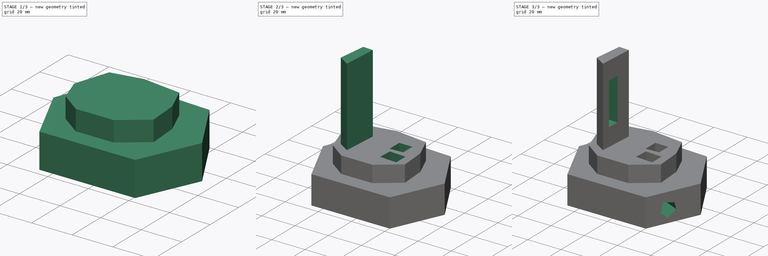
[diagram: build sequence overview — one tinted view per stage of 3, left to right]
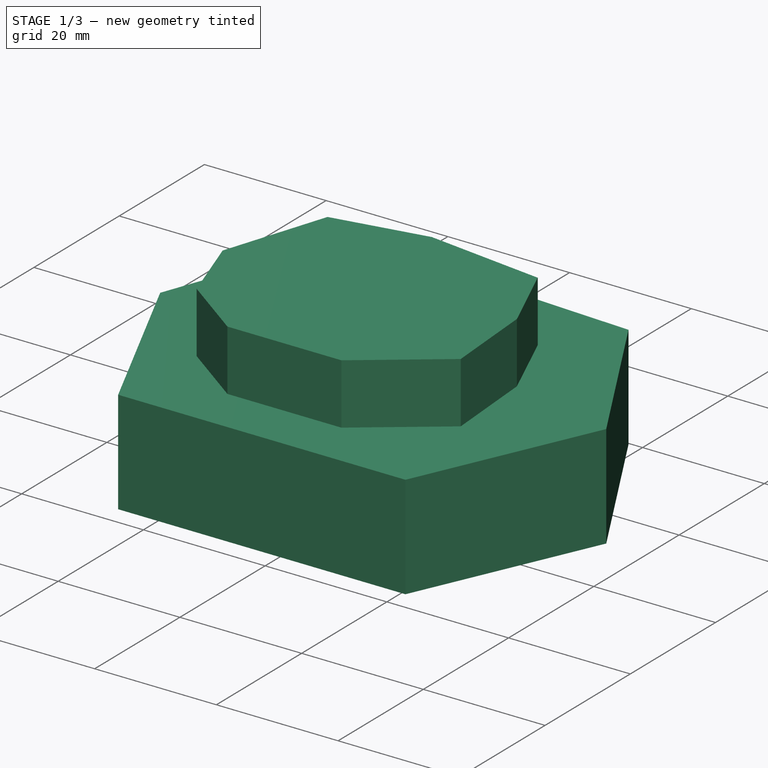
[diagram: stage 1 of 3 — iso view after this stage's code; geometry added in this stage tinted green]
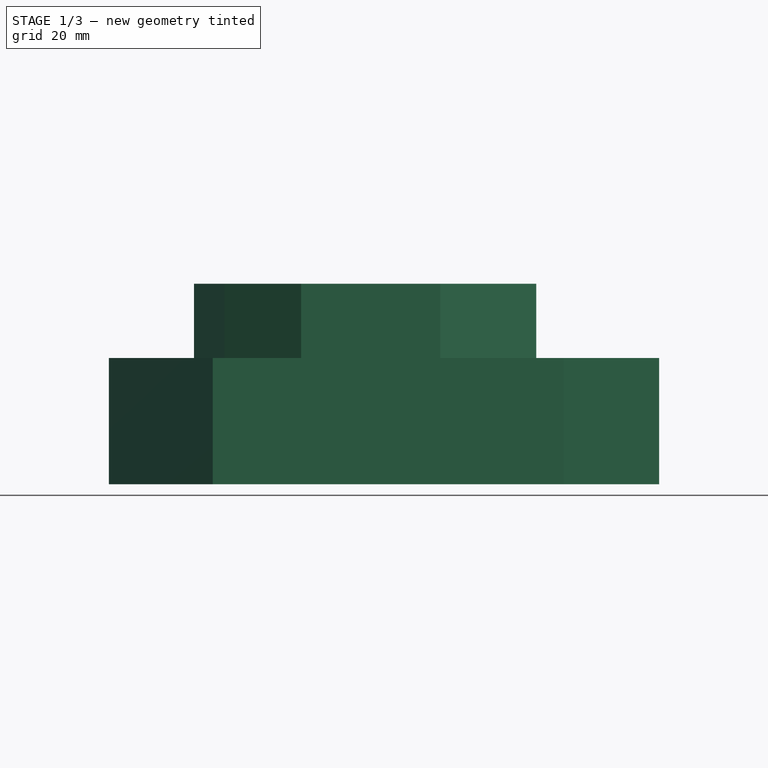
[diagram: stage 1 of 3 — front view after this stage's code; geometry added in this stage tinted green]
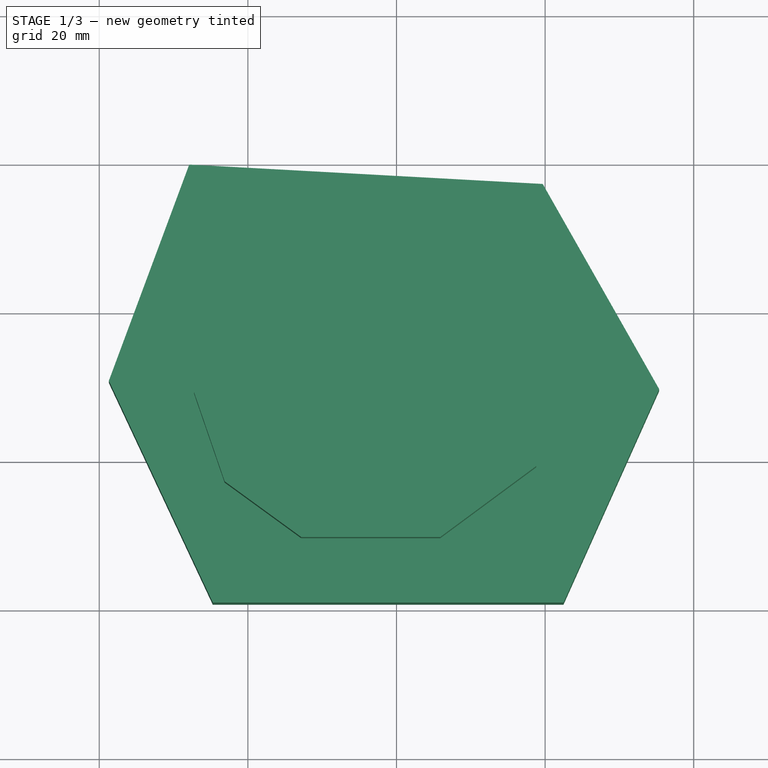
[diagram: stage 1 of 3 — top view after this stage's code; geometry added in this stage tinted green]
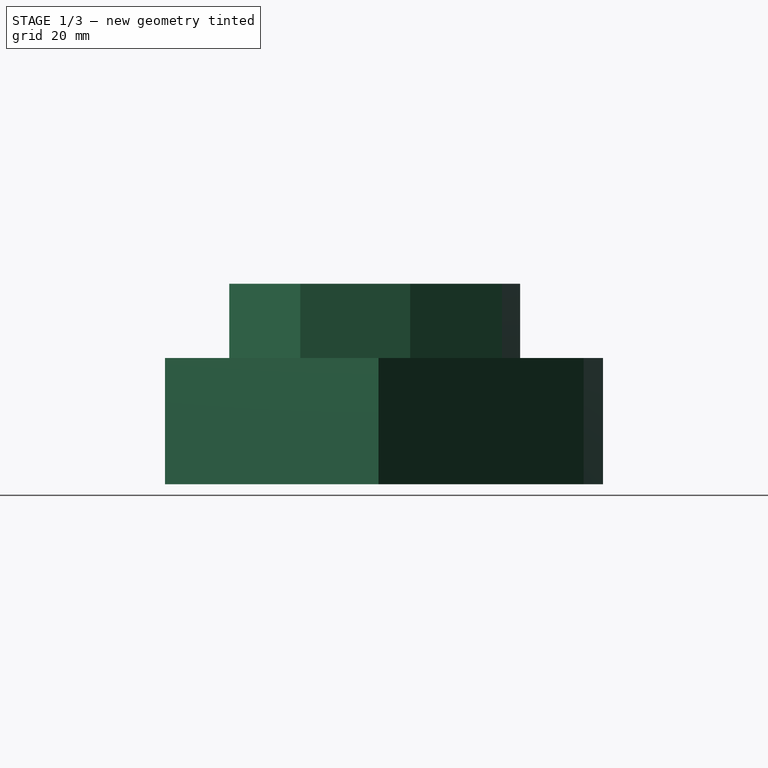
[diagram: stage 1 of 3 — right view after this stage's code; geometry added in this stage tinted green]
FCSTD DOCUMENT  (FreeCAD 1.0R39319 (Git))
Label: ojt1_t17p01_extrusions_holes
License: All rights reserved
LicenseURL: https://en.wikipedia.org/wiki/All_rights_reserved
objects: Sketcher::SketchObject×8, PartDesign::Pocket×4, PartDesign::Pad×3, PartDesign::Body×1
note: 38 computed .brp shape members not serialized (recipe doc carries the construction recipe); baked Part::Feature solids carry a one-line shape summary decoded from their .brp

FEATURE [Sketcher::SketchObject] Sketch
  ArcFitTolerance = 1e-06
  AttachmentSupport = -> [XY_Plane]
  FullyConstrained = false
  MakeInternals = false
  MapMode = 5
  sketch-geometry (6):
    g0: LineSegment StartX=-27.8919 StartY=19.7763 StartZ=0 EndX=19.6828 EndY=17.1643 EndZ=0
    g1: LineSegment StartX=19.6828 StartY=17.1643 StartZ=0 EndX=35.3544 EndY=-10.4476 EndZ=0
    g2: LineSegment StartX=35.3544 StartY=-10.4476 StartZ=0 EndX=22.4813 EndY=-39.1789 EndZ=0
    g3: LineSegment StartX=22.4813 StartY=-39.1789 StartZ=0 EndX=-24.7202 EndY=-39.1789 EndZ=0
    g4: LineSegment StartX=-24.7202 StartY=-39.1789 StartZ=0 EndX=-38.7128 EndY=-9.3282 EndZ=0
    g5: LineSegment StartX=-38.7128 StartY=-9.3282 StartZ=0 EndX=-27.8919 EndY=19.7763 EndZ=0
  constraints (7):
    c: Coincident(g0,g1)
    c: Coincident(g1,g2)
    c: Coincident(g2,g3)
    c: Horizontal(g3)
    c: Coincident(g3,g4)
    c: Coincident(g4,g5)
    c: Coincident(g5,g0)
FEATURE [PartDesign::Pad] Pad
  Direction = (0,0,1)
  Length = 17
  Length2 = 10
  Profile = -> Sketch
  ReferenceAxis = -> Sketch [N_Axis]
  Refine = true
  Suppressed = false
  Type = 0
FEATURE [Sketcher::SketchObject] Sketch001
  ArcFitTolerance = 1e-06
  AttachmentSupport = -> [Pad]
  FullyConstrained = true
  MakeInternals = false
  MapMode = 5
  Placement = pos=(0,0,17) rot=(0,0,1;0rad)
  sketch-geometry (4):
    g0: LineSegment StartX=-18.1903 StartY=10.4478 StartZ=0 EndX=-25.4665 EndY=-5.59695 EndZ=0
    g1: LineSegment StartX=-18.1903 StartY=10.4478 StartZ=0 EndX=-25.4665 EndY=-5.59695 EndZ=0
    g2: LineSegment StartX=-25.4665 StartY=-5.59695 StartZ=0 EndX=-25.4665 EndY=-20.7089 EndZ=0
    g3: LineSegment StartX=-25.4665 StartY=-20.7089 StartZ=0 EndX=-18.5635 EndY=-33.2089 EndZ=0
  constraints (4):
    c: Coincident(g1,g1)
    c: Coincident(g1,g2)
    c: Vertical(g2)
    c: Coincident(g2,g3)
FEATURE [Sketcher::SketchObject] Sketch002
  ArcFitTolerance = 1e-06
  AttachmentSupport = -> [Pad]
  FullyConstrained = false
  MakeInternals = false
  MapMode = 5
  Placement = pos=(0,0,17) rot=(0,0,1;0rad)
  sketch-geometry (9):
    g0: LineSegment StartX=-27.2472 StartY=-11.0487 StartZ=0 EndX=-21.8165 EndY=5.80527 EndZ=0
    g1: LineSegment StartX=-21.8165 StartY=5.80527 StartZ=0 EndX=-6.64797 EndY=8.61426 EndZ=0
    g2: LineSegment StartX=-6.64797 StartY=8.61426 StartZ=0 EndX=12.4532 EndY=6.1798 EndZ=0
    g3: LineSegment StartX=12.4532 StartY=6.1798 StartZ=0 EndX=17.6966 EndY=-6.17975 EndZ=0
    g4: LineSegment StartX=17.6966 StartY=-6.17975 StartZ=0 EndX=18.8202 EndY=-20.9738 EndZ=0
    g5: LineSegment StartX=18.8202 StartY=-20.9738 StartZ=0 EndX=5.89884 EndY=-30.5243 EndZ=0
    g6: LineSegment StartX=5.89884 StartY=-30.5243 StartZ=0 EndX=-12.8277 EndY=-30.5243 EndZ=0
    g7: LineSegment StartX=-12.8277 StartY=-30.5243 StartZ=0 EndX=-23.1274 EndY=-23.0337 EndZ=0
    g8: LineSegment StartX=-23.1274 StartY=-23.0337 StartZ=0 EndX=-27.2472 EndY=-11.0487 EndZ=0
  constraints (10):
    c: Coincident(g0,g1)
    c: Coincident(g1,g2)
    c: Coincident(g2,g3)
    c: Coincident(g3,g4)
    c: Coincident(g4,g5)
    c: Coincident(g5,g6)
    c: Horizontal(g6)
    c: Coincident(g6,g7)
    c: Coincident(g7,g8)
    c: Coincident(g8,g0)
FEATURE [PartDesign::Pad] Pad001
  BaseFeature = -> Pad
  Direction = (0,0,1)
  Length = 10
  Length2 = 10
  Profile = -> Sketch002
  ReferenceAxis = -> Sketch002 [N_Axis]
  Refine = true
  Suppressed = false
  Type = 0
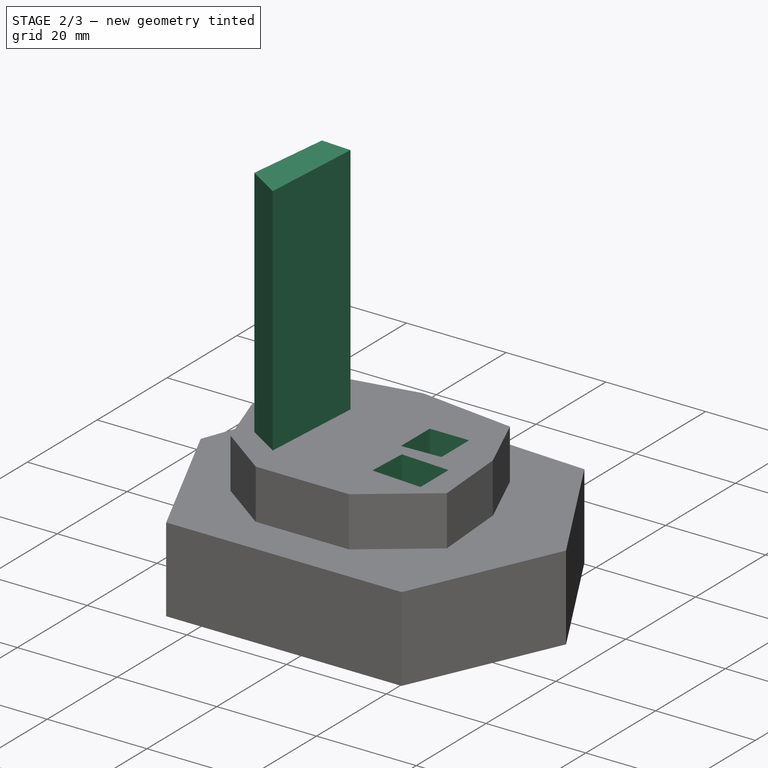
[diagram: stage 2 of 3 — iso view after this stage's code; geometry added in this stage tinted green]
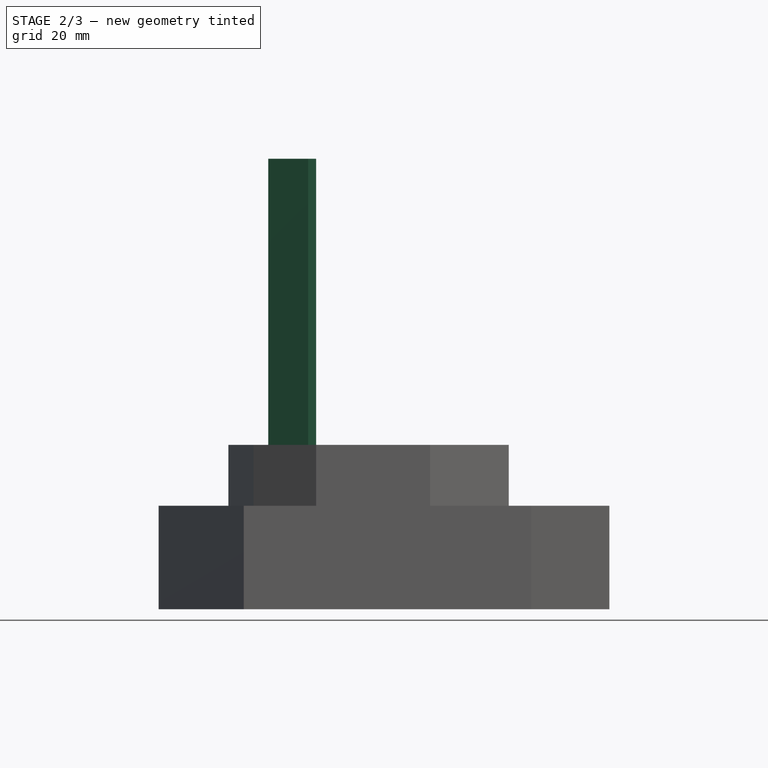
[diagram: stage 2 of 3 — front view after this stage's code; geometry added in this stage tinted green]
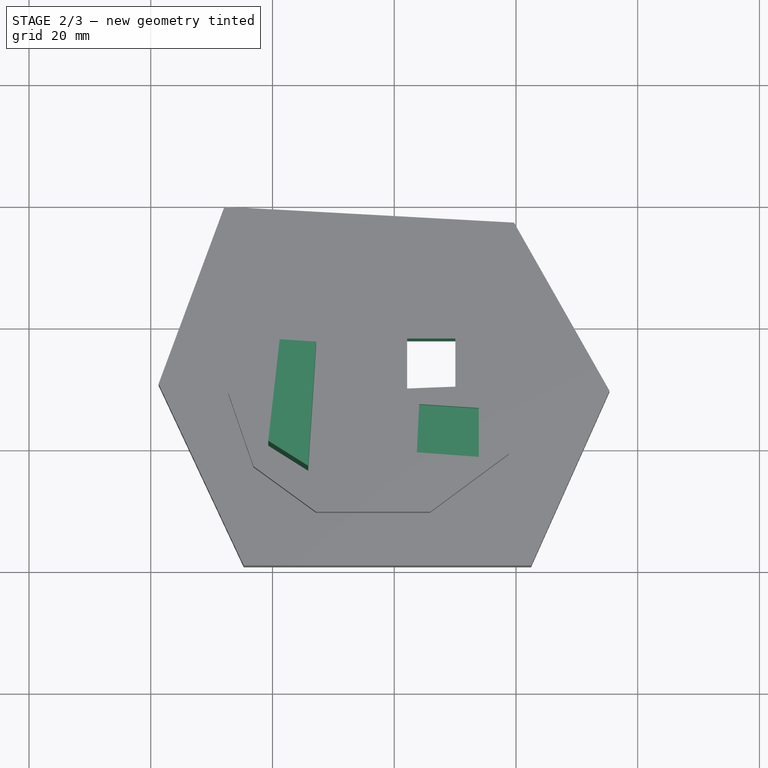
[diagram: stage 2 of 3 — top view after this stage's code; geometry added in this stage tinted green]
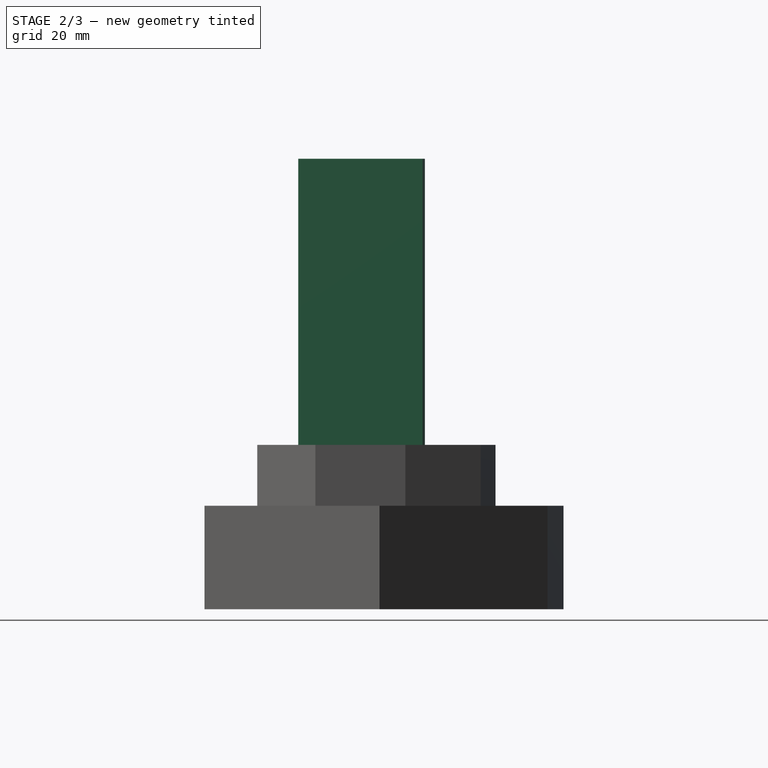
[diagram: stage 2 of 3 — right view after this stage's code; geometry added in this stage tinted green]
FEATURE [Sketcher::SketchObject] Sketch003
  ArcFitTolerance = 1e-06
  AttachmentSupport = -> [Pad001]
  FullyConstrained = false
  MakeInternals = false
  MapMode = 5
  Placement = pos=(0,0,27) rot=(0,0,1;0rad)
  sketch-geometry (4):
    g0: LineSegment StartX=-20.6929 StartY=-19.6629 StartZ=0 EndX=-18.8203 EndY=-2.99623 EndZ=0
    g1: LineSegment StartX=-18.8203 StartY=-2.99623 StartZ=0 EndX=-12.8277 EndY=-3.37077 EndZ=0
    g2: LineSegment StartX=-12.8277 StartY=-3.37077 StartZ=0 EndX=-14.1386 EndY=-23.7828 EndZ=0
    g3: LineSegment StartX=-14.1386 StartY=-23.7828 StartZ=0 EndX=-20.6929 EndY=-19.6629 EndZ=0
  constraints (4):
    c: Coincident(g0,g1)
    c: Coincident(g1,g2)
    c: Coincident(g2,g3)
    c: Coincident(g3,g0)
FEATURE [PartDesign::Pad] Pad002
  BaseFeature = -> Pad001
  Direction = (0,0,1)
  Length = 47
  Length2 = 10
  Profile = -> Sketch003
  ReferenceAxis = -> Sketch003 [N_Axis]
  Refine = true
  Suppressed = false
  Type = 0
FEATURE [Sketcher::SketchObject] Sketch004
  ArcFitTolerance = 1e-06
  AttachmentSupport = -> [Pad002]
  FullyConstrained = false
  MakeInternals = false
  MapMode = 5
  Placement = pos=(0,0,27) rot=(0,0,1;0rad)
  sketch-geometry (4):
    g0: LineSegment StartX=4.10434 StartY=-12.8357 StartZ=0 EndX=3.72775 EndY=-20.744 EndZ=0
    g1: LineSegment StartX=3.72775 StartY=-20.744 StartZ=0 EndX=13.8955 EndY=-21.4971 EndZ=0
    g2: LineSegment StartX=13.8955 StartY=-21.4971 StartZ=0 EndX=13.8955 EndY=-13.4633 EndZ=0
    g3: LineSegment StartX=13.8955 StartY=-13.4633 StartZ=0 EndX=4.10434 EndY=-12.8357 EndZ=0
  constraints (5):
    c: Coincident(g0,g1)
    c: Coincident(g1,g2)
    c: Vertical(g2)
    c: Coincident(g2,g3)
    c: Coincident(g3,g0)
FEATURE [PartDesign::Pocket] Pocket
  BaseFeature = -> Pad002
  Direction = (0,0,-1)
  Length = 5
  Length2 = 5
  Profile = -> Sketch004
  ReferenceAxis = -> Sketch004 [N_Axis]
  Refine = true
  Suppressed = false
  Type = 0
FEATURE [Sketcher::SketchObject] Sketch005
  ArcFitTolerance = 1e-06
  AttachmentSupport = -> [Pocket]
  FullyConstrained = false
  MakeInternals = false
  MapMode = 5
  Placement = pos=(0,0,27) rot=(0,0,1;0rad)
  sketch-geometry (4):
    g0: LineSegment StartX=2.12345 StartY=-2.04427 StartZ=0 EndX=2.12345 EndY=-10.2662 EndZ=0
    g1: LineSegment StartX=2.12345 StartY=-10.2662 StartZ=0 EndX=10.037 EndY=-9.95784 EndZ=0
    g2: LineSegment StartX=10.037 StartY=-9.95784 StartZ=0 EndX=10.037 EndY=-2.04427 EndZ=0
    g3: LineSegment StartX=10.037 StartY=-2.04427 StartZ=0 EndX=2.12345 EndY=-2.04427 EndZ=0
  constraints (7):
    c: Vertical(g0)
    c: Coincident(g0,g1)
    c: Coincident(g1,g2)
    c: Vertical(g2)
    c: Coincident(g2,g3)
    c: Coincident(g3,g0)
    c: Horizontal(g3)
FEATURE [PartDesign::Pocket] Pocket001
  BaseFeature = -> Pocket
  Direction = (0,0,-1)
  Length = 5
  Length2 = 5
  Profile = -> Sketch005
  ReferenceAxis = -> Sketch005 [N_Axis]
  Refine = true
  Suppressed = false
  Type = 1
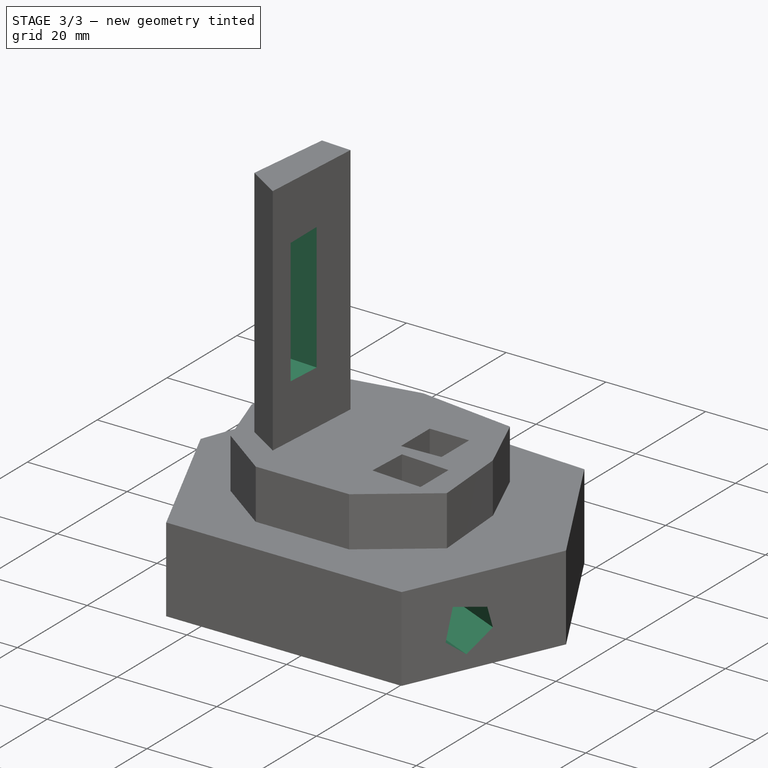
[diagram: stage 3 of 3 — iso view after this stage's code; geometry added in this stage tinted green]
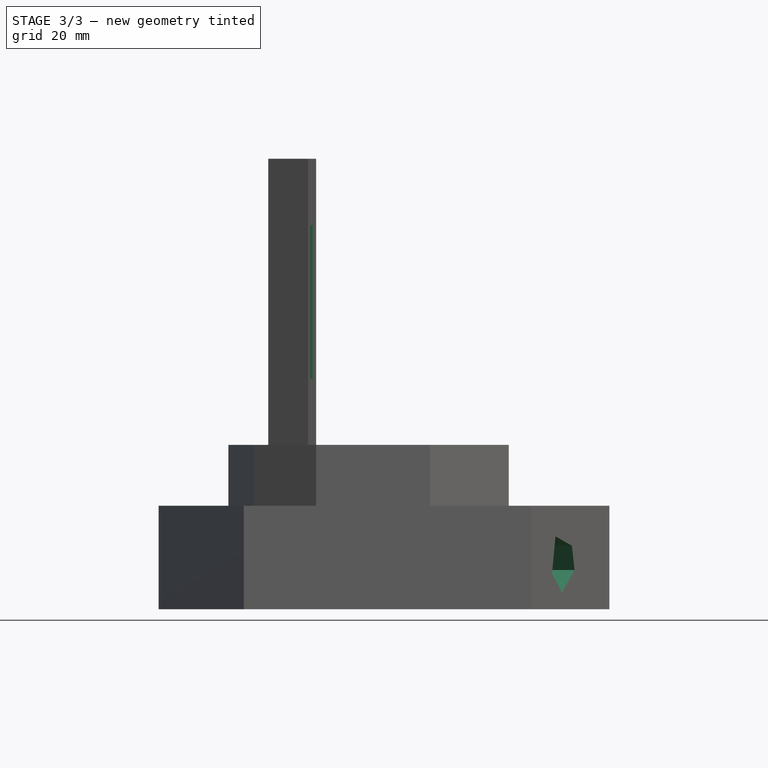
[diagram: stage 3 of 3 — front view after this stage's code; geometry added in this stage tinted green]
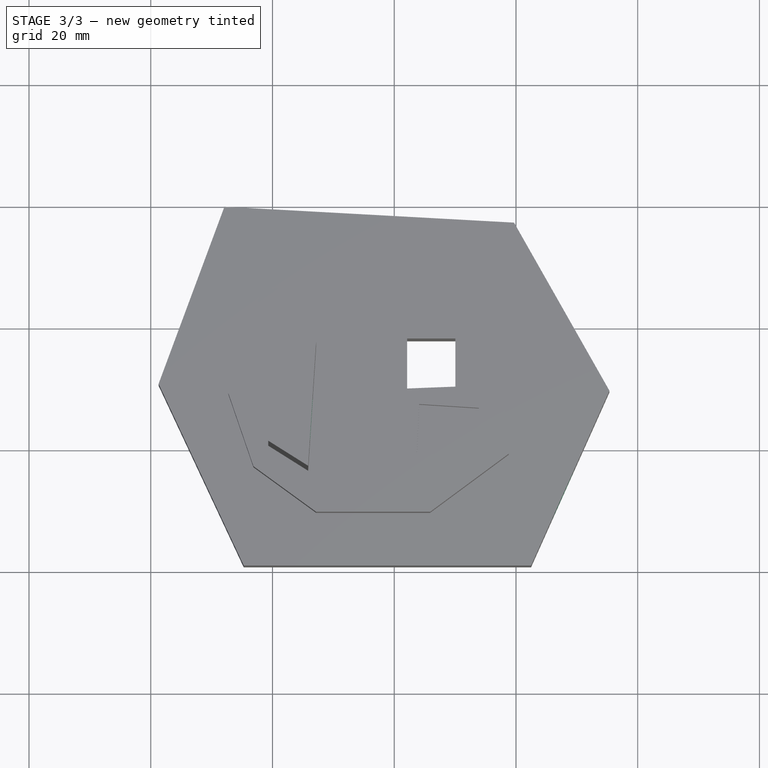
[diagram: stage 3 of 3 — top view after this stage's code; geometry added in this stage tinted green]
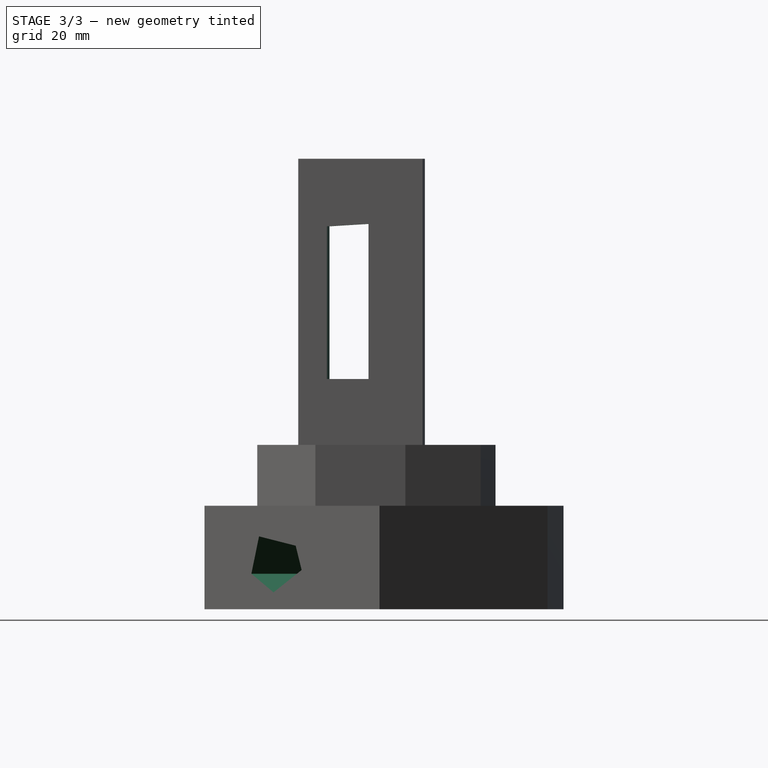
[diagram: stage 3 of 3 — right view after this stage's code; geometry added in this stage tinted green]
FEATURE [Sketcher::SketchObject] Sketch006
  ArcFitTolerance = 1e-06
  AttachmentSupport = -> [Pocket001]
  FullyConstrained = false
  MakeInternals = false
  MapMode = 5
  Placement = pos=(-12.5595,0.806573,0) rot=(0.602029,0.564607,0.564607;2.05777rad)
  sketch-geometry (4):
    g0: LineSegment StartX=-19.9262 StartY=62.902 StartZ=0 EndX=-19.9262 EndY=37.8227 EndZ=0
    g1: LineSegment StartX=-19.9262 StartY=37.8227 StartZ=0 EndX=-13.0864 EndY=37.8227 EndZ=0
    g2: LineSegment StartX=-13.0864 StartY=37.8227 StartZ=0 EndX=-13.0864 EndY=63.3166 EndZ=0
    g3: LineSegment StartX=-13.0864 StartY=63.3166 StartZ=0 EndX=-19.9262 EndY=62.902 EndZ=0
  constraints (7):
    c: Vertical(g0)
    c: Coincident(g0,g1)
    c: Horizontal(g1)
    c: Coincident(g1,g2)
    c: Vertical(g2)
    c: Coincident(g2,g3)
    c: Coincident(g3,g0)
FEATURE [PartDesign::Pocket] Pocket002
  BaseFeature = -> Pocket001
  Direction = (-0.997944,0.0640883,-1e-16)
  Length = 5
  Length2 = 5
  Profile = -> Sketch006
  ReferenceAxis = -> Sketch006 [N_Axis]
  Refine = true
  Suppressed = false
  Type = 1
FEATURE [Sketcher::SketchObject] Sketch007
  ArcFitTolerance = 1e-06
  AttachmentSupport = -> [Pocket002]
  FullyConstrained = false
  MakeInternals = false
  MapMode = 5
  Placement = pos=(33.342,-14.939,0) rot=(0.737385,0.477631,0.477631;1.87084rad)
  sketch-geometry (5):
    g0: LineSegment StartX=-16.7534 StartY=11.9686 StartZ=0 EndX=-18.1333 EndY=5.8358 EndZ=0
    g1: LineSegment StartX=-18.1333 StartY=5.8358 StartZ=0 EndX=-14.147 EndY=2.76939 EndZ=0
    g2: LineSegment StartX=-14.147 StartY=2.76939 StartZ=0 EndX=-9.08738 EndY=6.44908 EndZ=0
    g3: LineSegment StartX=-9.08738 StartY=6.44908 StartZ=0 EndX=-10.1606 EndY=10.4354 EndZ=0
    g4: LineSegment StartX=-10.1606 StartY=10.4354 StartZ=0 EndX=-16.7534 EndY=11.9686 EndZ=0
  constraints (5):
    c: Coincident(g0,g1)
    c: Coincident(g1,g2)
    c: Coincident(g2,g3)
    c: Coincident(g3,g4)
    c: Coincident(g4,g0)
FEATURE [PartDesign::Pocket] Pocket003
  BaseFeature = -> Pocket002
  Direction = (-0.912586,0.408886,0)
  Length = 5
  Length2 = 5
  Profile = -> Sketch007
  ReferenceAxis = -> Sketch007 [N_Axis]
  Refine = true
  Suppressed = false
  Type = 1
FEATURE [PartDesign::Body] Body
  AllowCompound = false
  Group = -> [Sketch,Pad,Sketch001,Sketch002,Pad001,Sketch003,Pad002,Sketch004,Pocket,Sketch005,Pocket001,Sketch006,Pocket002,Sketch007,Pocket003]
  Origin = -> Origin
  Tip = -> Pocket003
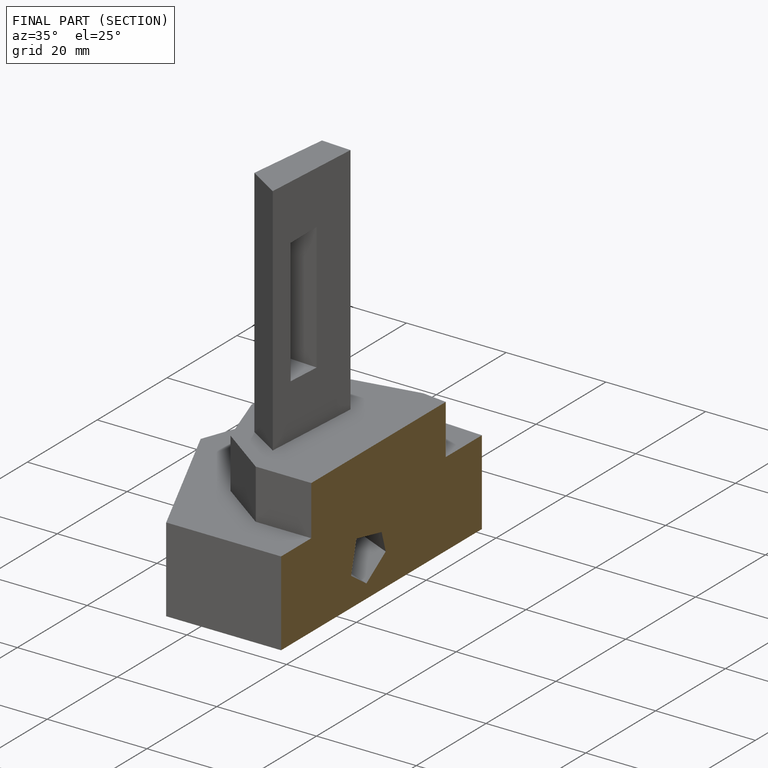
[diagram: finished part — half-section view (interior)]
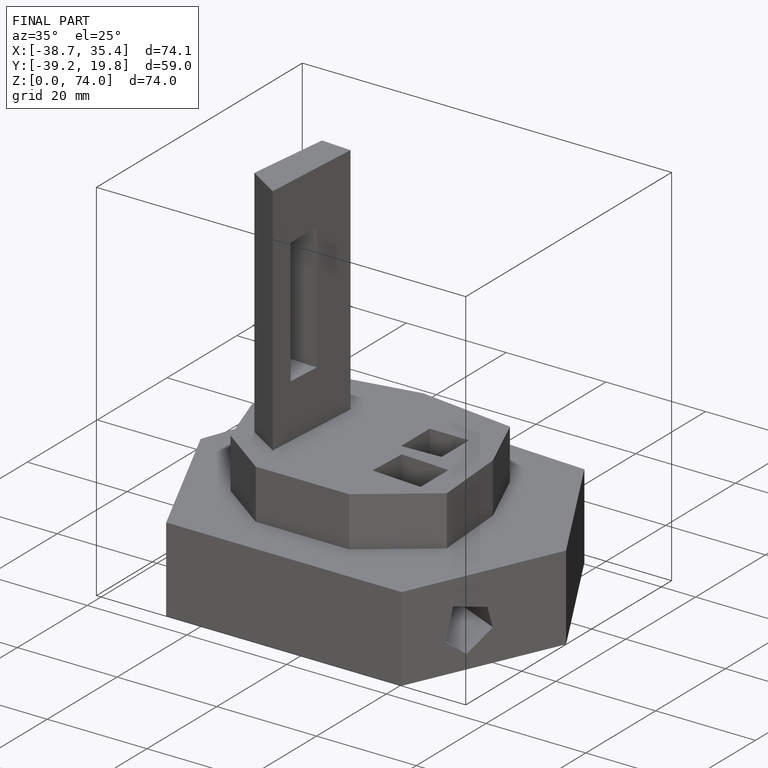
[diagram: finished part — iso view with bounding-box wireframe]
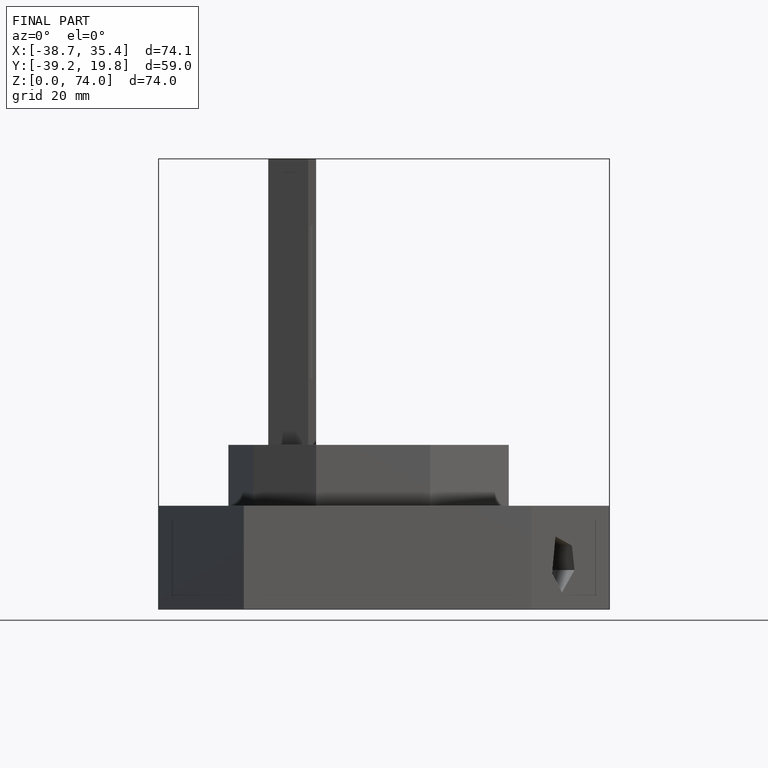
[diagram: finished part — front view with bounding-box wireframe]
